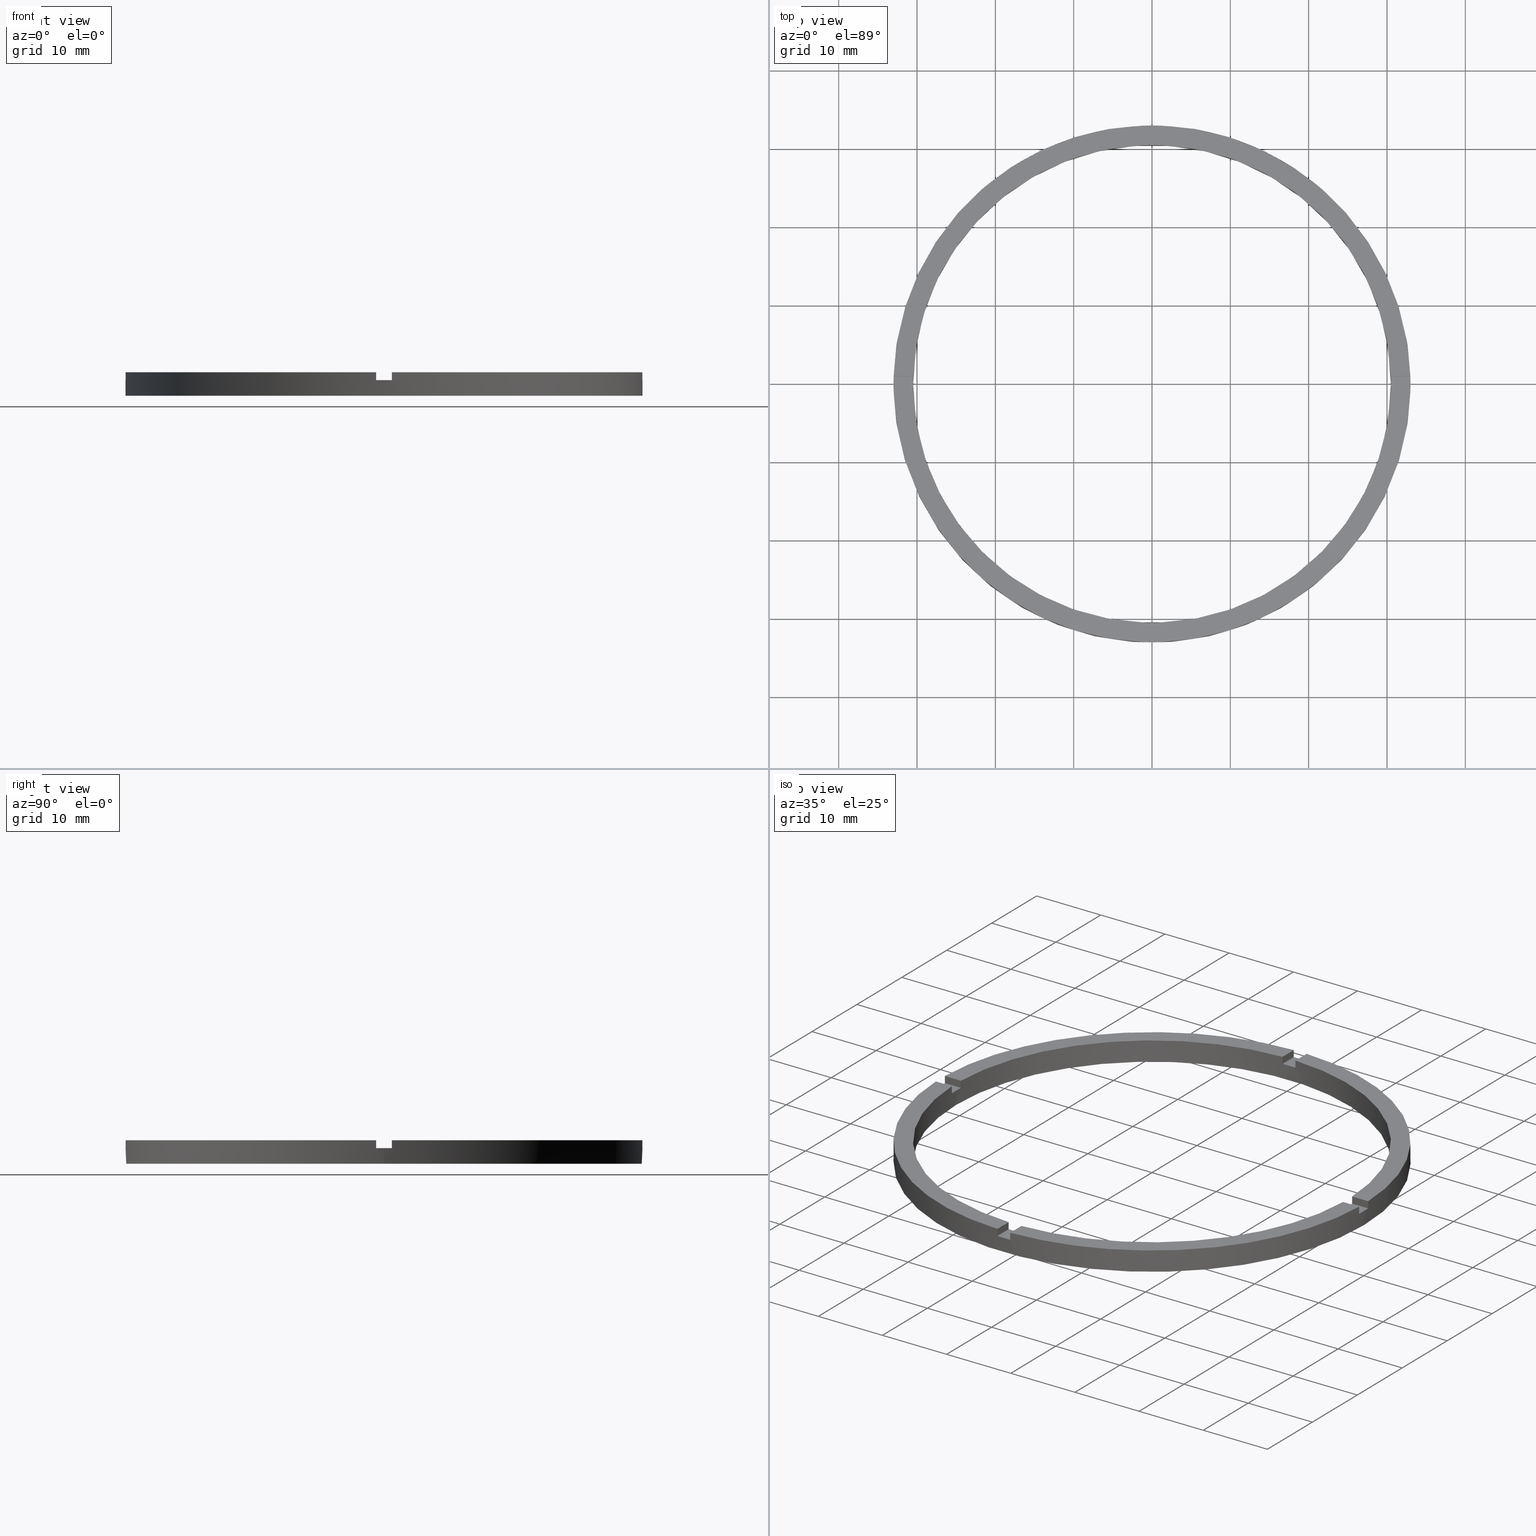
[diagram: canonical four-view strip — front | top / right | iso, engineering-drawing reading convention]
A machine part, canonical four-view strip (front | top / right | iso — engineering-drawing reading convention). The complete STEP part file that produces these views, byte-faithful:
ISO-10303-21;
HEADER;
FILE_DESCRIPTION (( 'STEP AP203' ),
    '1' );
FILE_NAME ('514137.step',
    '2024-12-26T02:41:05',
    ( 'MSI' ),
    ( '' ),
    'SwSTEP 2.0',
    'SolidWorks 2020',
    '' );
FILE_SCHEMA (( 'CONFIG_CONTROL_DESIGN' ));
ENDSEC;

DATA;
#1 = DIRECTION ( 'NONE',  ( 1.301042606982605074E-16, -1.000000000000000000, 0.000000000000000000 ) ) ;
#2 = AXIS2_PLACEMENT_3D ( 'NONE', #658, #128, #507 ) ;
#3 = CARTESIAN_POINT ( 'NONE',  ( 0.9999999999998377964, -23.00000000000018119, 3.000000000000000000 ) ) ;
#4 = DIRECTION ( 'NONE',  ( 0.000000000000000000, 0.000000000000000000, 1.000000000000000000 ) ) ;
#5 = EDGE_CURVE ( 'NONE', #659, #632, #130, .T. ) ;
#6 = CARTESIAN_POINT ( 'NONE',  ( 0.000000000000000000, 0.000000000000000000, 3.000000000000000000 ) ) ;
#7 = APPLICATION_PROTOCOL_DEFINITION ( 'international standard', 'config_control_design', 1994, #109 ) ;
#8 = EDGE_CURVE ( 'NONE', #237, #100, #144, .T. ) ;
#9 = ADVANCED_FACE ( 'NONE', ( #680 ), #294, .F. ) ;
#10 = CARTESIAN_POINT ( 'NONE',  ( 0.9999999999998386846, -30.48360214935236456, 3.000000000000000000 ) ) ;
#11 = CARTESIAN_POINT ( 'NONE',  ( -1.000000000000162315, -23.00000000000018119, 2.000000000000000000 ) ) ;
#12 = ORIENTED_EDGE ( 'NONE', *, *, #735, .F. ) ;
#13 = DIRECTION ( 'NONE',  ( 1.000000000000000000, 0.000000000000000000, 0.000000000000000000 ) ) ;
#14 = ORIENTED_EDGE ( 'NONE', *, *, #743, .F. ) ;
#15 = CARTESIAN_POINT ( 'NONE',  ( 0.000000000000000000, 0.000000000000000000, 0.000000000000000000 ) ) ;
#16 = CARTESIAN_POINT ( 'NONE',  ( 0.000000000000000000, 0.000000000000000000, 2.000000000000000000 ) ) ;
#17 = CARTESIAN_POINT ( 'NONE',  ( 0.9999999999999753530, 32.98484500494129179, 2.000000000000000000 ) ) ;
#18 = DIRECTION ( 'NONE',  ( 1.301042606982605074E-16, -1.000000000000000000, 0.000000000000000000 ) ) ;
#19 = PERSON_AND_ORGANIZATION ( #245, #57 ) ;
#20 = VECTOR ( 'NONE', #579, 1000.000000000000000 ) ;
#21 = CARTESIAN_POINT ( 'NONE',  ( -1.000000000000024647, 30.48360214935236101, 2.000000000000000000 ) ) ;
#22 = VECTOR ( 'NONE', #705, 1000.000000000000000 ) ;
#23 = CARTESIAN_POINT ( 'NONE',  ( 0.9999999999999753530, 30.48360214935236101, 2.000000000000000000 ) ) ;
#24 = LINE ( 'NONE', #530, #313 ) ;
#25 = ORIENTED_EDGE ( 'NONE', *, *, #500, .T. ) ;
#26 = FACE_OUTER_BOUND ( 'NONE', #547, .T. ) ;
#27 = LOCAL_TIME ( 10, 41, 5.000000000000000000, #274 ) ;
#28 = DIRECTION ( 'NONE',  ( 1.000000000000000000, 1.301042606982605074E-16, 0.000000000000000000 ) ) ;
#29 = PERSON_AND_ORGANIZATION ( #245, #57 ) ;
#30 = DIRECTION ( 'NONE',  ( 1.000000000000000000, 0.000000000000000000, 0.000000000000000000 ) ) ;
#31 = ORIENTED_EDGE ( 'NONE', *, *, #497, .F. ) ;
#32 = LINE ( 'NONE', #316, #20 ) ;
#33 = VERTEX_POINT ( 'NONE', #570 ) ;
#34 = VECTOR ( 'NONE', #39, 1000.000000000000000 ) ;
#35 = ORIENTED_EDGE ( 'NONE', *, *, #169, .F. ) ;
#36 = CARTESIAN_POINT ( 'NONE',  ( 0.000000000000000000, 0.000000000000000000, 2.000000000000000000 ) ) ;
#37 = DIRECTION ( 'NONE',  ( 1.000000000000000000, 0.000000000000000000, 0.000000000000000000 ) ) ;
#38 = EDGE_CURVE ( 'NONE', #131, #623, #414, .T. ) ;
#39 = DIRECTION ( 'NONE',  ( -0.000000000000000000, -0.000000000000000000, -1.000000000000000000 ) ) ;
#40 = CIRCLE ( 'NONE', #687, 33.00000000000000000 ) ;
#41 = VECTOR ( 'NONE', #353, 1000.000000000000000 ) ;
#42 = EDGE_CURVE ( 'NONE', #624, #493, #669, .T. ) ;
#43 = VECTOR ( 'NONE', #483, 1000.000000000000000 ) ;
#44 = ORIENTED_EDGE ( 'NONE', *, *, #138, .T. ) ;
#45 = EDGE_LOOP ( 'NONE', ( #645, #652, #577, #306 ) ) ;
#46 = LINE ( 'NONE', #93, #282 ) ;
#47 = ORIENTED_EDGE ( 'NONE', *, *, #194, .T. ) ;
#48 = VERTEX_POINT ( 'NONE', #455 ) ;
#49 = FACE_OUTER_BOUND ( 'NONE', #196, .T. ) ;
#50 = VECTOR ( 'NONE', #430, 1000.000000000000000 ) ;
#51 = ORIENTED_EDGE ( 'NONE', *, *, #180, .T. ) ;
#52 = AXIS2_PLACEMENT_3D ( 'NONE', #756, #466, #13 ) ;
#53 = ORIENTED_EDGE ( 'NONE', *, *, #443, .F. ) ;
#54 = CIRCLE ( 'NONE', #240, 33.00000000000000000 ) ;
#55 = LINE ( 'NONE', #604, #82 ) ;
#56 = AXIS2_PLACEMENT_3D ( 'NONE', #214, #513, #416 ) ;
#57 = ORGANIZATION ( 'δָ��', 'δָ��', '' ) ;
#58 = PRODUCT_DEFINITION ( 'δ֪', '', #783, #308 ) ;
#59 = EDGE_CURVE ( 'NONE', #201, #458, #676, .T. ) ;
#60 = LINE ( 'NONE', #222, #50 ) ;
#61 = EDGE_CURVE ( 'NONE', #557, #307, #145, .T. ) ;
#62 = PERSON_AND_ORGANIZATION ( #245, #57 ) ;
#63 = VECTOR ( 'NONE', #197, 1000.000000000000000 ) ;
#64 = PLANE ( 'NONE',  #650 ) ;
#65 = CALENDAR_DATE ( 2024, 26, 12 ) ;
#66 = LINE ( 'NONE', #693, #337 ) ;
#67 = CIRCLE ( 'NONE', #767, 33.00000000000000000 ) ;
#68 = LINE ( 'NONE', #235, #569 ) ;
#69 = FACE_OUTER_BOUND ( 'NONE', #189, .T. ) ;
#70 = DIRECTION ( 'NONE',  ( -0.000000000000000000, 0.000000000000000000, 1.000000000000000000 ) ) ;
#71 = CIRCLE ( 'NONE', #467, 33.00000000000000000 ) ;
#72 = CALENDAR_DATE ( 2024, 26, 12 ) ;
#73 = LINE ( 'NONE', #486, #88 ) ;
#74 = LINE ( 'NONE', #202, #63 ) ;
#75 = EDGE_CURVE ( 'NONE', #639, #98, #412, .T. ) ;
#76 = LINE ( 'NONE', #211, #603 ) ;
#77 = ORIENTED_EDGE ( 'NONE', *, *, #498, .F. ) ;
#78 = CIRCLE ( 'NONE', #742, 30.50000000000000000 ) ;
#79 = VECTOR ( 'NONE', #707, 1000.000000000000000 ) ;
#80 = PLANE ( 'NONE',  #523 ) ;
#81 = COORDINATED_UNIVERSAL_TIME_OFFSET ( 8, 0, .AHEAD. ) ;
#82 = VECTOR ( 'NONE', #777, 1000.000000000000000 ) ;
#83 = ORIENTED_EDGE ( 'NONE', *, *, #121, .T. ) ;
#84 = DATE_AND_TIME ( #65, #339 ) ;
#85 = DIRECTION ( 'NONE',  ( -1.000000000000000000, -1.951563910473908228E-16, 0.000000000000000000 ) ) ;
#86 = PERSON_AND_ORGANIZATION ( #245, #57 ) ;
#87 = FACE_OUTER_BOUND ( 'NONE', #45, .T. ) ;
#88 = VECTOR ( 'NONE', #374, 1000.000000000000000 ) ;
#89 = ORIENTED_EDGE ( 'NONE', *, *, #292, .F. ) ;
#90 = CIRCLE ( 'NONE', #352, 33.00000000000000000 ) ;
#91 = PERSON_AND_ORGANIZATION ( #245, #57 ) ;
#92 = ORIENTED_EDGE ( 'NONE', *, *, #217, .F. ) ;
#93 = CARTESIAN_POINT ( 'NONE',  ( -1.000000000000161426, -30.48360214935235390, 3.000000000000000000 ) ) ;
#94 = LINE ( 'NONE', #759, #581 ) ;
#95 = EDGE_LOOP ( 'NONE', ( #35, #341, #627, #400 ) ) ;
#96 = ORIENTED_EDGE ( 'NONE', *, *, #5, .T. ) ;
#97 = EDGE_CURVE ( 'NONE', #237, #755, #143, .T. ) ;
#98 = VERTEX_POINT ( 'NONE', #424 ) ;
#99 = EDGE_LOOP ( 'NONE', ( #402, #344, #643, #174 ) ) ;
#100 = VERTEX_POINT ( 'NONE', #505 ) ;
#101 = ORIENTED_EDGE ( 'NONE', *, *, #640, .T. ) ;
#102 = CARTESIAN_POINT ( 'NONE',  ( 0.000000000000000000, 0.000000000000000000, 2.000000000000000000 ) ) ;
#103 = APPROVAL ( #766, 'δָ��' ) ;
#104 = CALENDAR_DATE ( 2024, 26, 12 ) ;
#105 = ORIENTED_EDGE ( 'NONE', *, *, #743, .T. ) ;
#106 = ORIENTED_EDGE ( 'NONE', *, *, #138, .F. ) ;
#107 = ADVANCED_FACE ( 'NONE', ( #149 ), #671, .F. ) ;
#108 = VERTEX_POINT ( 'NONE', #164 ) ;
#109 = APPLICATION_CONTEXT ( 'configuration controlled 3d designs of mechanical parts and assemblies' ) ;
#110 = EDGE_CURVE ( 'NONE', #564, #48, #409, .T. ) ;
#111 = EDGE_LOOP ( 'NONE', ( #101, #83, #714, #448 ) ) ;
#112 = DIRECTION ( 'NONE',  ( 1.000000000000000000, 0.000000000000000000, -0.000000000000000000 ) ) ;
#113 = EDGE_LOOP ( 'NONE', ( #484, #314, #396, #741, #373, #47, #634, #502, #575, #716, #562, #746 ) ) ;
#114 = ORIENTED_EDGE ( 'NONE', *, *, #110, .T. ) ;
#115 = VERTEX_POINT ( 'NONE', #535 ) ;
#116 = CARTESIAN_POINT ( 'NONE',  ( -1.000000000000161426, -30.48360214935235390, 2.000000000000000000 ) ) ;
#117 = VERTEX_POINT ( 'NONE', #754 ) ;
#118 = EDGE_CURVE ( 'NONE', #749, #115, #423, .T. ) ;
#119 = CARTESIAN_POINT ( 'NONE',  ( 30.50000000000000000, 3.735172737399427541E-15, 2.000000000000000000 ) ) ;
#120 = VERTEX_POINT ( 'NONE', #17 ) ;
#121 = EDGE_CURVE ( 'NONE', #564, #156, #147, .T. ) ;
#122 = ORIENTED_EDGE ( 'NONE', *, *, #162, .T. ) ;
#123 = DIRECTION ( 'NONE',  ( 1.000000000000000000, 0.000000000000000000, 0.000000000000000000 ) ) ;
#124 = ORIENTED_EDGE ( 'NONE', *, *, #735, .T. ) ;
#125 = MECHANICAL_CONTEXT ( 'NONE', #212, 'mechanical' ) ;
#126 = ORIENTED_EDGE ( 'NONE', *, *, #194, .F. ) ;
#127 = ORIENTED_EDGE ( 'NONE', *, *, #434, .T. ) ;
#128 = DIRECTION ( 'NONE',  ( 0.000000000000000000, -0.000000000000000000, 1.000000000000000000 ) ) ;
#129 = ORIENTED_EDGE ( 'NONE', *, *, #121, .F. ) ;
#130 = LINE ( 'NONE', #199, #146 ) ;
#131 = VERTEX_POINT ( 'NONE', #633 ) ;
#132 = VERTEX_POINT ( 'NONE', #21 ) ;
#133 = CARTESIAN_POINT ( 'NONE',  ( 0.9999999999998386846, -30.48360214935236456, 2.000000000000000000 ) ) ;
#134 = APPROVAL_ROLE ( '' ) ;
#135 = ORIENTED_EDGE ( 'NONE', *, *, #403, .F. ) ;
#136 = DIRECTION ( 'NONE',  ( 0.000000000000000000, 0.000000000000000000, 1.000000000000000000 ) ) ;
#137 = EDGE_LOOP ( 'NONE', ( #560, #375, #96, #298 ) ) ;
#138 = EDGE_CURVE ( 'NONE', #621, #132, #150, .T. ) ;
#139 = ORIENTED_EDGE ( 'NONE', *, *, #472, .T. ) ;
#140 = VECTOR ( 'NONE', #220, 1000.000000000000000 ) ;
#141 = DIRECTION ( 'NONE',  ( 1.000000000000000000, 0.000000000000000000, 0.000000000000000000 ) ) ;
#142 = DIRECTION ( 'NONE',  ( 1.000000000000000000, 0.000000000000000000, -0.000000000000000000 ) ) ;
#143 = CIRCLE ( 'NONE', #441, 33.00000000000000000 ) ;
#144 = LINE ( 'NONE', #453, #406 ) ;
#145 = LINE ( 'NONE', #641, #140 ) ;
#146 = VECTOR ( 'NONE', #398, 1000.000000000000000 ) ;
#147 = LINE ( 'NONE', #475, #677 ) ;
#148 = DIRECTION ( 'NONE',  ( 1.000000000000000000, 0.000000000000000000, -0.000000000000000000 ) ) ;
#149 = FACE_OUTER_BOUND ( 'NONE', #389, .T. ) ;
#150 = LINE ( 'NONE', #433, #419 ) ;
#151 = LINE ( 'NONE', #771, #421 ) ;
#152 = AXIS2_PLACEMENT_3D ( 'NONE', #251, #522, #247 ) ;
#153 = AXIS2_PLACEMENT_3D ( 'NONE', #723, #415, #469 ) ;
#154 = CARTESIAN_POINT ( 'NONE',  ( -1.000000000000160982, -32.98484500494128469, 3.000000000000000000 ) ) ;
#155 = DIRECTION ( 'NONE',  ( 1.000000000000000000, 0.000000000000000000, -0.000000000000000000 ) ) ;
#156 = VERTEX_POINT ( 'NONE', #133 ) ;
#157 = AXIS2_PLACEMENT_3D ( 'NONE', #688, #734, #778 ) ;
#158 = PLANE ( 'NONE',  #204 ) ;
#159 = CARTESIAN_POINT ( 'NONE',  ( 0.000000000000000000, 0.000000000000000000, 2.000000000000000000 ) ) ;
#160 = DIRECTION ( 'NONE',  ( 1.000000000000000000, 0.000000000000000000, 0.000000000000000000 ) ) ;
#161 = DIRECTION ( 'NONE',  ( 0.000000000000000000, 0.000000000000000000, 1.000000000000000000 ) ) ;
#162 = EDGE_CURVE ( 'NONE', #392, #639, #404, .T. ) ;
#163 = PLANE ( 'NONE',  #534 ) ;
#164 = CARTESIAN_POINT ( 'NONE',  ( 32.98484500494128469, -1.000000000000158318, 2.000000000000000000 ) ) ;
#165 = CARTESIAN_POINT ( 'NONE',  ( 32.98484500494129179, 0.9999999999998416822, 3.000000000000000000 ) ) ;
#166 = CC_DESIGN_PERSON_AND_ORGANIZATION_ASSIGNMENT ( #29, #586, ( #58 ) ) ;
#167 = EDGE_CURVE ( 'NONE', #565, #397, #678, .T. ) ;
#168 = CARTESIAN_POINT ( 'NONE',  ( -1.000000000000162315, -23.00000000000018119, 3.000000000000000000 ) ) ;
#169 = EDGE_CURVE ( 'NONE', #48, #755, #151, .T. ) ;
#170 = CARTESIAN_POINT ( 'NONE',  ( -32.98484500494129179, 0.9999999999999737987, 3.000000000000000000 ) ) ;
#171 = ORIENTED_EDGE ( 'NONE', *, *, #751, .T. ) ;
#172 = DIRECTION ( 'NONE',  ( 1.000000000000000000, 0.000000000000000000, 0.000000000000000000 ) ) ;
#173 = AXIS2_PLACEMENT_3D ( 'NONE', #509, #393, #499 ) ;
#174 = ORIENTED_EDGE ( 'NONE', *, *, #59, .T. ) ;
#175 = ORIENTED_EDGE ( 'NONE', *, *, #517, .F. ) ;
#176 = AXIS2_PLACEMENT_3D ( 'NONE', #744, #753, #112 ) ;
#177 = DIRECTION ( 'NONE',  ( 0.000000000000000000, 0.000000000000000000, 1.000000000000000000 ) ) ;
#178 = ORIENTED_EDGE ( 'NONE', *, *, #442, .F. ) ;
#179 = EDGE_CURVE ( 'NONE', #108, #380, #54, .T. ) ;
#180 = EDGE_CURVE ( 'NONE', #286, #115, #342, .T. ) ;
#181 = DIRECTION ( 'NONE',  ( 1.000000000000000000, 0.000000000000000000, 0.000000000000000000 ) ) ;
#182 = SECURITY_CLASSIFICATION_LEVEL ( 'unclassified' ) ;
#183 = ORIENTED_EDGE ( 'NONE', *, *, #751, .F. ) ;
#184 = DIRECTION ( 'NONE',  ( -6.505213034913022906E-17, 1.000000000000000000, 0.000000000000000000 ) ) ;
#185 = ORIENTED_EDGE ( 'NONE', *, *, #660, .T. ) ;
#186 = PLANE ( 'NONE',  #205 ) ;
#187 = ORIENTED_EDGE ( 'NONE', *, *, #492, .F. ) ;
#188 = ORIENTED_EDGE ( 'NONE', *, *, #442, .T. ) ;
#189 = EDGE_LOOP ( 'NONE', ( #31, #651, #25, #461, #706, #135, #719, #89, #665, #395, #615, #386 ) ) ;
#190 = ORIENTED_EDGE ( 'NONE', *, *, #179, .T. ) ;
#191 = ORIENTED_EDGE ( 'NONE', *, *, #38, .T. ) ;
#192 = ORIENTED_EDGE ( 'NONE', *, *, #738, .T. ) ;
#193 = CARTESIAN_POINT ( 'NONE',  ( 22.99999999999999645, -1.000000000000158984, 2.000000000000000000 ) ) ;
#194 = EDGE_CURVE ( 'NONE', #394, #623, #68, .T. ) ;
#195 = CARTESIAN_POINT ( 'NONE',  ( 0.000000000000000000, 0.000000000000000000, 3.000000000000000000 ) ) ;
#196 = EDGE_LOOP ( 'NONE', ( #368, #291, #381, #360, #77, #105 ) ) ;
#197 = DIRECTION ( 'NONE',  ( -0.000000000000000000, -0.000000000000000000, -1.000000000000000000 ) ) ;
#198 = CC_DESIGN_SECURITY_CLASSIFICATION ( #287, ( #783 ) ) ;
#199 = CARTESIAN_POINT ( 'NONE',  ( 0.9999999999999753530, 23.00000000000000000, 3.000000000000000000 ) ) ;
#200 = EDGE_CURVE ( 'NONE', #565, #557, #94, .T. ) ;
#201 = VERTEX_POINT ( 'NONE', #116 ) ;
#202 = CARTESIAN_POINT ( 'NONE',  ( 33.00000000000000000, 4.041334437186266200E-15, 3.000000000000000000 ) ) ;
#203 = DIRECTION ( 'NONE',  ( 1.000000000000000000, 0.000000000000000000, 0.000000000000000000 ) ) ;
#204 = AXIS2_PLACEMENT_3D ( 'NONE', #537, #244, #1 ) ;
#205 = AXIS2_PLACEMENT_3D ( 'NONE', #675, #572, #482 ) ;
#206 = AXIS2_PLACEMENT_3D ( 'NONE', #230, #28, #256 ) ;
#207 = EDGE_CURVE ( 'NONE', #657, #117, #334, .T. ) ;
#208 = DIRECTION ( 'NONE',  ( 0.000000000000000000, 0.000000000000000000, 1.000000000000000000 ) ) ;
#209 = DIRECTION ( 'NONE',  ( 1.000000000000000000, 0.000000000000000000, 0.000000000000000000 ) ) ;
#210 = EDGE_CURVE ( 'NONE', #289, #391, #55, .T. ) ;
#211 = CARTESIAN_POINT ( 'NONE',  ( 30.48360214935236456, 0.9999999999998414602, 3.000000000000000000 ) ) ;
#212 = APPLICATION_CONTEXT ( 'configuration controlled 3d designs of mechanical parts and assemblies' ) ;
#213 = CARTESIAN_POINT ( 'NONE',  ( 0.000000000000000000, 0.000000000000000000, 2.000000000000000000 ) ) ;
#214 = CARTESIAN_POINT ( 'NONE',  ( 0.000000000000000000, 0.000000000000000000, 3.000000000000000000 ) ) ;
#215 = ADVANCED_FACE ( 'NONE', ( #87 ), #625, .F. ) ;
#216 = ORIENTED_EDGE ( 'NONE', *, *, #207, .F. ) ;
#217 = EDGE_CURVE ( 'NONE', #397, #33, #326, .T. ) ;
#218 = ORIENTED_EDGE ( 'NONE', *, *, #180, .F. ) ;
#219 = PLANE ( 'NONE',  #176 ) ;
#220 = DIRECTION ( 'NONE',  ( 1.000000000000000000, 1.951563910473908228E-16, -0.000000000000000000 ) ) ;
#221 = ORIENTED_EDGE ( 'NONE', *, *, #712, .T. ) ;
#222 = CARTESIAN_POINT ( 'NONE',  ( 30.48360214935235390, -1.000000000000158540, 3.000000000000000000 ) ) ;
#223 = ORIENTED_EDGE ( 'NONE', *, *, #262, .T. ) ;
#224 = ADVANCED_FACE ( 'NONE', ( #361 ), #436, .F. ) ;
#225 = DIRECTION ( 'NONE',  ( -1.301042606982605074E-16, 1.000000000000000000, -0.000000000000000000 ) ) ;
#226 =( LENGTH_UNIT ( ) NAMED_UNIT ( * ) SI_UNIT ( .MILLI., .METRE. ) );
#227 = CARTESIAN_POINT ( 'NONE',  ( 0.9999999999999753530, 32.98484500494129179, 3.000000000000000000 ) ) ;
#228 = EDGE_CURVE ( 'NONE', #120, #632, #73, .T. ) ;
#229 = DIRECTION ( 'NONE',  ( 1.000000000000000000, 1.951563910473908228E-16, -0.000000000000000000 ) ) ;
#230 = CARTESIAN_POINT ( 'NONE',  ( 0.9999999999998377964, -23.00000000000018119, 2.000000000000000000 ) ) ;
#231 = AXIS2_PLACEMENT_3D ( 'NONE', #597, #491, #142 ) ;
#232 = PLANE ( 'NONE',  #590 ) ;
#233 = DIRECTION ( 'NONE',  ( -0.000000000000000000, -0.000000000000000000, -1.000000000000000000 ) ) ;
#234 = EDGE_CURVE ( 'NONE', #115, #749, #620, .T. ) ;
#235 = CARTESIAN_POINT ( 'NONE',  ( -32.98484500494129179, 0.9999999999999737987, 3.000000000000000000 ) ) ;
#236 = DIRECTION ( 'NONE',  ( -0.000000000000000000, 0.000000000000000000, 1.000000000000000000 ) ) ;
#237 = VERTEX_POINT ( 'NONE', #769 ) ;
#238 = EDGE_LOOP ( 'NONE', ( #727, #647, #139, #446 ) ) ;
#239 = DIRECTION ( 'NONE',  ( -0.000000000000000000, -0.000000000000000000, -1.000000000000000000 ) ) ;
#240 = AXIS2_PLACEMENT_3D ( 'NONE', #36, #774, #141 ) ;
#241 = CARTESIAN_POINT ( 'NONE',  ( -32.98484500494129179, 0.9999999999999737987, 2.000000000000000000 ) ) ;
#242 = ADVANCED_FACE ( 'NONE', ( #611 ), #186, .F. ) ;
#243 = EDGE_CURVE ( 'NONE', #392, #108, #599, .T. ) ;
#244 = DIRECTION ( 'NONE',  ( -1.000000000000000000, -1.301042606982605074E-16, 0.000000000000000000 ) ) ;
#245 = PERSON ( 'δָ��', 'δָ��', 'δָ��', ('δָ��'), ('δָ��'), ('δָ��') ) ;
#246 = DIRECTION ( 'NONE',  ( 1.000000000000000000, 0.000000000000000000, 0.000000000000000000 ) ) ;
#247 = DIRECTION ( 'NONE',  ( 1.000000000000000000, 0.000000000000000000, 0.000000000000000000 ) ) ;
#248 = APPLICATION_PROTOCOL_DEFINITION ( 'international standard', 'config_control_design', 1994, #212 ) ;
#249 = DIRECTION ( 'NONE',  ( 0.000000000000000000, 0.000000000000000000, 1.000000000000000000 ) ) ;
#250 = CARTESIAN_POINT ( 'NONE',  ( 0.000000000000000000, 0.000000000000000000, 3.000000000000000000 ) ) ;
#251 = CARTESIAN_POINT ( 'NONE',  ( 0.000000000000000000, 0.000000000000000000, 3.000000000000000000 ) ) ;
#252 = CC_DESIGN_APPROVAL ( #690, ( #58 ) ) ;
#253 = DIRECTION ( 'NONE',  ( 0.000000000000000000, 0.000000000000000000, 1.000000000000000000 ) ) ;
#254 = CARTESIAN_POINT ( 'NONE',  ( -30.48360214935236101, 0.9999999999999744649, 3.000000000000000000 ) ) ;
#255 = DIRECTION ( 'NONE',  ( 1.000000000000000000, 0.000000000000000000, 0.000000000000000000 ) ) ;
#256 = DIRECTION ( 'NONE',  ( -1.301042606982605074E-16, 1.000000000000000000, 0.000000000000000000 ) ) ;
#257 = ADVANCED_FACE ( 'NONE', ( #349 ), #594, .T. ) ;
#258 = CARTESIAN_POINT ( 'NONE',  ( -1.000000000000024647, 23.00000000000000000, 2.000000000000000000 ) ) ;
#259 = AXIS2_PLACEMENT_3D ( 'NONE', #781, #636, #630 ) ;
#260 = AXIS2_PLACEMENT_3D ( 'NONE', #193, #283, #617 ) ;
#261 = DIRECTION ( 'NONE',  ( -0.000000000000000000, -0.000000000000000000, -1.000000000000000000 ) ) ;
#262 = EDGE_CURVE ( 'NONE', #201, #156, #78, .T. ) ;
#263 = DATE_TIME_ROLE ( 'creation_date' ) ;
#264 = CARTESIAN_POINT ( 'NONE',  ( 0.000000000000000000, 0.000000000000000000, 3.000000000000000000 ) ) ;
#265 = CARTESIAN_POINT ( 'NONE',  ( 0.000000000000000000, 0.000000000000000000, 3.000000000000000000 ) ) ;
#266 = CARTESIAN_POINT ( 'NONE',  ( -30.48360214935236101, 0.9999999999999744649, 2.000000000000000000 ) ) ;
#267 = DIRECTION ( 'NONE',  ( 0.000000000000000000, 0.000000000000000000, -1.000000000000000000 ) ) ;
#268 = DIRECTION ( 'NONE',  ( 1.000000000000000000, 0.000000000000000000, 0.000000000000000000 ) ) ;
#269 = ORIENTED_EDGE ( 'NONE', *, *, #75, .T. ) ;
#270 = DIRECTION ( 'NONE',  ( 0.000000000000000000, 0.000000000000000000, 1.000000000000000000 ) ) ;
#271 = CARTESIAN_POINT ( 'NONE',  ( -30.50000000000000000, 0.000000000000000000, 2.000000000000000000 ) ) ;
#272 = DIRECTION ( 'NONE',  ( 0.000000000000000000, 0.000000000000000000, 1.000000000000000000 ) ) ;
#273 = AXIS2_PLACEMENT_3D ( 'NONE', #488, #270, #372 ) ;
#274 = COORDINATED_UNIVERSAL_TIME_OFFSET ( 8, 0, .AHEAD. ) ;
#275 = ORIENTED_EDGE ( 'NONE', *, *, #434, .F. ) ;
#276 = APPROVAL_DATE_TIME ( #538, #690 ) ;
#277 = CIRCLE ( 'NONE', #459, 33.00000000000000000 ) ;
#278 = DIRECTION ( 'NONE',  ( -0.000000000000000000, -0.000000000000000000, -1.000000000000000000 ) ) ;
#279 = CALENDAR_DATE ( 2024, 26, 12 ) ;
#280 = AXIS2_PLACEMENT_3D ( 'NONE', #195, #536, #246 ) ;
#281 = ORIENTED_EDGE ( 'NONE', *, *, #704, .T. ) ;
#282 = VECTOR ( 'NONE', #177, 1000.000000000000000 ) ;
#283 = DIRECTION ( 'NONE',  ( 6.505213034913022906E-17, -1.000000000000000000, 0.000000000000000000 ) ) ;
#284 = FACE_BOUND ( 'NONE', #662, .T. ) ;
#285 = CARTESIAN_POINT ( 'NONE',  ( 0.000000000000000000, 0.000000000000000000, 3.000000000000000000 ) ) ;
#286 = VERTEX_POINT ( 'NONE', #271 ) ;
#287 = SECURITY_CLASSIFICATION ( '', '', #182 ) ;
#288 = CIRCLE ( 'NONE', #359, 33.00000000000000000 ) ;
#289 = VERTEX_POINT ( 'NONE', #521 ) ;
#290 = VECTOR ( 'NONE', #428, 1000.000000000000000 ) ;
#291 = ORIENTED_EDGE ( 'NONE', *, *, #460, .T. ) ;
#292 = EDGE_CURVE ( 'NONE', #565, #366, #90, .T. ) ;
#293 = LINE ( 'NONE', #332, #556 ) ;
#294 = PLANE ( 'NONE',  #606 ) ;
#295 = CIRCLE ( 'NONE', #722, 33.00000000000000000 ) ;
#296 = FACE_OUTER_BOUND ( 'NONE', #473, .T. ) ;
#297 = LINE ( 'NONE', #462, #290 ) ;
#298 = ORIENTED_EDGE ( 'NONE', *, *, #228, .F. ) ;
#299 = ADVANCED_FACE ( 'NONE', ( #588 ), #64, .T. ) ;
#300 = FACE_OUTER_BOUND ( 'NONE', #747, .T. ) ;
#301 = ORIENTED_EDGE ( 'NONE', *, *, #217, .T. ) ;
#302 = AXIS2_PLACEMENT_3D ( 'NONE', #250, #552, #539 ) ;
#303 = CIRCLE ( 'NONE', #273, 33.00000000000000000 ) ;
#304 = DIRECTION ( 'NONE',  ( 0.000000000000000000, 0.000000000000000000, 1.000000000000000000 ) ) ;
#305 = ORIENTED_EDGE ( 'NONE', *, *, #704, .F. ) ;
#306 = ORIENTED_EDGE ( 'NONE', *, *, #500, .F. ) ;
#307 = VERTEX_POINT ( 'NONE', #456 ) ;
#308 = DESIGN_CONTEXT ( 'detailed design', #109, 'design' ) ;
#309 = LINE ( 'NONE', #336, #584 ) ;
#310 = LINE ( 'NONE', #686, #43 ) ;
#311 = ORIENTED_EDGE ( 'NONE', *, *, #422, .F. ) ;
#312 = ORIENTED_EDGE ( 'NONE', *, *, #61, .F. ) ;
#313 = VECTOR ( 'NONE', #435, 1000.000000000000000 ) ;
#314 = ORIENTED_EDGE ( 'NONE', *, *, #497, .T. ) ;
#315 = LINE ( 'NONE', #254, #79 ) ;
#316 = CARTESIAN_POINT ( 'NONE',  ( -1.000000000000024647, 30.48360214935236101, 3.000000000000000000 ) ) ;
#317 = DIRECTION ( 'NONE',  ( 1.301042606982605074E-16, -1.000000000000000000, 0.000000000000000000 ) ) ;
#318 = VECTOR ( 'NONE', #529, 1000.000000000000000 ) ;
#319 = CIRCLE ( 'NONE', #280, 30.50000000000000000 ) ;
#320 = LOCAL_TIME ( 10, 41, 5.000000000000000000, #589 ) ;
#321 = CIRCLE ( 'NONE', #259, 30.50000000000000000 ) ;
#322 = APPROVAL_ROLE ( '' ) ;
#323 = CIRCLE ( 'NONE', #173, 33.00000000000000000 ) ;
#324 = DIRECTION ( 'NONE',  ( 0.000000000000000000, 0.000000000000000000, 1.000000000000000000 ) ) ;
#325 = PERSON_AND_ORGANIZATION ( #245, #57 ) ;
#326 = CIRCLE ( 'NONE', #157, 30.50000000000000000 ) ;
#327 = APPROVAL_DATE_TIME ( #610, #103 ) ;
#328 = EDGE_CURVE ( 'NONE', #380, #655, #323, .T. ) ;
#329 = FACE_OUTER_BOUND ( 'NONE', #757, .T. ) ;
#330 = CYLINDRICAL_SURFACE ( 'NONE', #411, 33.00000000000000000 ) ;
#331 = CIRCLE ( 'NONE', #52, 33.00000000000000000 ) ;
#332 = CARTESIAN_POINT ( 'NONE',  ( 0.9999999999999753530, 23.00000000000000000, 2.000000000000000000 ) ) ;
#333 = DIRECTION ( 'NONE',  ( 1.000000000000000000, 0.000000000000000000, 0.000000000000000000 ) ) ;
#334 = LINE ( 'NONE', #376, #596 ) ;
#335 = APPROVAL_DATE_TIME ( #598, #525 ) ;
#336 = CARTESIAN_POINT ( 'NONE',  ( -1.000000000000024647, 32.98484500494128469, 3.000000000000000000 ) ) ;
#337 = VECTOR ( 'NONE', #740, 1000.000000000000000 ) ;
#338 = CARTESIAN_POINT ( 'NONE',  ( 0.9999999999998377964, -23.00000000000018119, 2.000000000000000000 ) ) ;
#339 = LOCAL_TIME ( 10, 41, 5.000000000000000000, #81 ) ;
#340 = AXIS2_PLACEMENT_3D ( 'NONE', #15, #715, #37 ) ;
#341 = ORIENTED_EDGE ( 'NONE', *, *, #110, .F. ) ;
#342 = LINE ( 'NONE', #531, #602 ) ;
#343 = PERSON_AND_ORGANIZATION_ROLE ( 'classification_officer' ) ;
#344 = ORIENTED_EDGE ( 'NONE', *, *, #514, .T. ) ;
#345 = PLANE ( 'NONE',  #153 ) ;
#346 = VERTEX_POINT ( 'NONE', #506 ) ;
#347 = CIRCLE ( 'NONE', #494, 30.50000000000000000 ) ;
#348 = DIRECTION ( 'NONE',  ( 1.000000000000000000, 0.000000000000000000, 0.000000000000000000 ) ) ;
#349 = FACE_OUTER_BOUND ( 'NONE', #113, .T. ) ;
#350 = FACE_OUTER_BOUND ( 'NONE', #457, .T. ) ;
#351 = LINE ( 'NONE', #338, #616 ) ;
#352 = AXIS2_PLACEMENT_3D ( 'NONE', #720, #764, #172 ) ;
#353 = DIRECTION ( 'NONE',  ( -1.301042606982605074E-16, 1.000000000000000000, -0.000000000000000000 ) ) ;
#354 = COORDINATED_UNIVERSAL_TIME_OFFSET ( 8, 0, .AHEAD. ) ;
#355 = LINE ( 'NONE', #165, #618 ) ;
#356 = DIRECTION ( 'NONE',  ( 0.000000000000000000, 0.000000000000000000, 1.000000000000000000 ) ) ;
#357 = DIRECTION ( 'NONE',  ( -0.000000000000000000, -0.000000000000000000, -1.000000000000000000 ) ) ;
#358 = FACE_OUTER_BOUND ( 'NONE', #684, .T. ) ;
#359 = AXIS2_PLACEMENT_3D ( 'NONE', #683, #378, #268 ) ;
#360 = ORIENTED_EDGE ( 'NONE', *, *, #449, .F. ) ;
#361 = FACE_OUTER_BOUND ( 'NONE', #137, .T. ) ;
#362 = ORIENTED_EDGE ( 'NONE', *, *, #612, .F. ) ;
#363 = DIRECTION ( 'NONE',  ( -1.000000000000000000, -6.505213034913022906E-17, 0.000000000000000000 ) ) ;
#364 = ORIENTED_EDGE ( 'NONE', *, *, #449, .T. ) ;
#365 = SHAPE_DEFINITION_REPRESENTATION ( #750, #382 ) ;
#366 = VERTEX_POINT ( 'NONE', #154 ) ;
#367 = LOCAL_TIME ( 10, 41, 5.000000000000000000, #595 ) ;
#368 = ORIENTED_EDGE ( 'NONE', *, *, #582, .T. ) ;
#369 = CARTESIAN_POINT ( 'NONE',  ( 0.000000000000000000, 0.000000000000000000, 2.000000000000000000 ) ) ;
#370 = PERSON_AND_ORGANIZATION ( #245, #57 ) ;
#371 = ORIENTED_EDGE ( 'NONE', *, *, #207, .T. ) ;
#372 = DIRECTION ( 'NONE',  ( 1.000000000000000000, 0.000000000000000000, 0.000000000000000000 ) ) ;
#373 = ORIENTED_EDGE ( 'NONE', *, *, #582, .F. ) ;
#374 = DIRECTION ( 'NONE',  ( 0.000000000000000000, 0.000000000000000000, 1.000000000000000000 ) ) ;
#375 = ORIENTED_EDGE ( 'NONE', *, *, #725, .T. ) ;
#376 = CARTESIAN_POINT ( 'NONE',  ( -1.000000000000024647, 23.00000000000000000, 3.000000000000000000 ) ) ;
#377 = ORIENTED_EDGE ( 'NONE', *, *, #42, .F. ) ;
#378 = DIRECTION ( 'NONE',  ( 0.000000000000000000, 0.000000000000000000, 1.000000000000000000 ) ) ;
#379 = ORIENTED_EDGE ( 'NONE', *, *, #443, .T. ) ;
#380 = VERTEX_POINT ( 'NONE', #692 ) ;
#381 = ORIENTED_EDGE ( 'NONE', *, *, #61, .T. ) ;
#382 = ADVANCED_BREP_SHAPE_REPRESENTATION ( '514137', ( #729, #340 ), #417 ) ;
#383 = CARTESIAN_POINT ( 'NONE',  ( -23.00000000000018474, -1.000000000000024203, 3.000000000000000000 ) ) ;
#384 = ORIENTED_EDGE ( 'NONE', *, *, #292, .T. ) ;
#385 = DIRECTION ( 'NONE',  ( -1.000000000000000000, 0.000000000000000000, 0.000000000000000000 ) ) ;
#386 = ORIENTED_EDGE ( 'NONE', *, *, #532, .T. ) ;
#387 = EDGE_LOOP ( 'NONE', ( #371, #185, #106, #631 ) ) ;
#388 = EDGE_LOOP ( 'NONE', ( #444, #44, #390, #450 ) ) ;
#389 = EDGE_LOOP ( 'NONE', ( #122, #124, #454, #218, #364, #305, #301, #362, #223, #129, #114, #187 ) ) ;
#390 = ORIENTED_EDGE ( 'NONE', *, *, #541, .F. ) ;
#391 = VERTEX_POINT ( 'NONE', #780 ) ;
#392 = VERTEX_POINT ( 'NONE', #697 ) ;
#393 = DIRECTION ( 'NONE',  ( 0.000000000000000000, 0.000000000000000000, 1.000000000000000000 ) ) ;
#394 = VERTEX_POINT ( 'NONE', #241 ) ;
#395 = ORIENTED_EDGE ( 'NONE', *, *, #460, .F. ) ;
#396 = ORIENTED_EDGE ( 'NONE', *, *, #761, .T. ) ;
#397 = VERTEX_POINT ( 'NONE', #649 ) ;
#398 = DIRECTION ( 'NONE',  ( 0.000000000000000000, 1.000000000000000000, 0.000000000000000000 ) ) ;
#399 = ADVANCED_FACE ( 'NONE', ( #69 ), #330, .T. ) ;
#400 = ORIENTED_EDGE ( 'NONE', *, *, #97, .T. ) ;
#401 = CC_DESIGN_PERSON_AND_ORGANIZATION_ASSIGNMENT ( #325, #343, ( #287 ) ) ;
#402 = ORIENTED_EDGE ( 'NONE', *, *, #403, .T. ) ;
#403 = EDGE_CURVE ( 'NONE', #458, #100, #67, .T. ) ;
#404 = CIRCLE ( 'NONE', #524, 30.50000000000000000 ) ;
#405 = VECTOR ( 'NONE', #317, 1000.000000000000000 ) ;
#406 = VECTOR ( 'NONE', #504, 1000.000000000000000 ) ;
#407 = ORIENTED_EDGE ( 'NONE', *, *, #422, .T. ) ;
#408 = CARTESIAN_POINT ( 'NONE',  ( -23.00000000000018474, 0.9999999999999756861, 3.000000000000000000 ) ) ;
#409 = CIRCLE ( 'NONE', #56, 30.50000000000000000 ) ;
#410 = VECTOR ( 'NONE', #85, 1000.000000000000000 ) ;
#411 = AXIS2_PLACEMENT_3D ( 'NONE', #700, #278, #385 ) ;
#412 = CIRCLE ( 'NONE', #476, 30.50000000000000000 ) ;
#413 = AXIS2_PLACEMENT_3D ( 'NONE', #731, #356, #348 ) ;
#414 = LINE ( 'NONE', #408, #410 ) ;
#415 = DIRECTION ( 'NONE',  ( 0.000000000000000000, -0.000000000000000000, 1.000000000000000000 ) ) ;
#416 = DIRECTION ( 'NONE',  ( 1.000000000000000000, 0.000000000000000000, 0.000000000000000000 ) ) ;
#417 =( GEOMETRIC_REPRESENTATION_CONTEXT ( 3 ) GLOBAL_UNCERTAINTY_ASSIGNED_CONTEXT ( ( #528 ) ) GLOBAL_UNIT_ASSIGNED_CONTEXT ( ( #226, #548, #728 ) ) REPRESENTATION_CONTEXT ( 'NONE', 'WORKASPACE' ) );
#418 = CARTESIAN_POINT ( 'NONE',  ( 0.000000000000000000, 0.000000000000000000, 2.000000000000000000 ) ) ;
#419 = VECTOR ( 'NONE', #682, 1000.000000000000000 ) ;
#420 = CARTESIAN_POINT ( 'NONE',  ( -1.000000000000160982, -32.98484500494128469, 2.000000000000000000 ) ) ;
#421 = VECTOR ( 'NONE', #732, 1000.000000000000000 ) ;
#422 = EDGE_CURVE ( 'NONE', #117, #131, #319, .T. ) ;
#423 = CIRCLE ( 'NONE', #776, 30.50000000000000000 ) ;
#424 = CARTESIAN_POINT ( 'NONE',  ( 30.48360214935236456, 0.9999999999998414602, 2.000000000000000000 ) ) ;
#425 = DIRECTION ( 'NONE',  ( 0.000000000000000000, 0.000000000000000000, 1.000000000000000000 ) ) ;
#426 = EDGE_CURVE ( 'NONE', #120, #621, #71, .T. ) ;
#427 = DIRECTION ( 'NONE',  ( -0.000000000000000000, -0.000000000000000000, -1.000000000000000000 ) ) ;
#428 = DIRECTION ( 'NONE',  ( 0.000000000000000000, 0.000000000000000000, 1.000000000000000000 ) ) ;
#429 = CARTESIAN_POINT ( 'NONE',  ( 0.000000000000000000, 0.000000000000000000, 2.000000000000000000 ) ) ;
#430 = DIRECTION ( 'NONE',  ( 0.000000000000000000, 0.000000000000000000, 1.000000000000000000 ) ) ;
#431 = DIRECTION ( 'NONE',  ( 1.000000000000000000, -0.000000000000000000, 0.000000000000000000 ) ) ;
#432 = DIRECTION ( 'NONE',  ( -1.000000000000000000, 0.000000000000000000, 0.000000000000000000 ) ) ;
#433 = CARTESIAN_POINT ( 'NONE',  ( -1.000000000000024647, 23.00000000000000000, 2.000000000000000000 ) ) ;
#434 = EDGE_CURVE ( 'NONE', #752, #131, #315, .T. ) ;
#435 = DIRECTION ( 'NONE',  ( -1.000000000000000000, -1.951563910473908228E-16, 0.000000000000000000 ) ) ;
#436 = PLANE ( 'NONE',  #721 ) ;
#437 = CC_DESIGN_PERSON_AND_ORGANIZATION_ASSIGNMENT ( #91, #480, ( #783 ) ) ;
#438 = PLANE ( 'NONE',  #685 ) ;
#439 = CARTESIAN_POINT ( 'NONE',  ( 0.9999999999999753530, 30.48360214935236101, 3.000000000000000000 ) ) ;
#440 = DIRECTION ( 'NONE',  ( -0.000000000000000000, -1.000000000000000000, -0.000000000000000000 ) ) ;
#441 = AXIS2_PLACEMENT_3D ( 'NONE', #745, #4, #209 ) ;
#442 = EDGE_CURVE ( 'NONE', #493, #98, #76, .T. ) ;
#443 = EDGE_CURVE ( 'NONE', #493, #659, #576, .T. ) ;
#444 = ORIENTED_EDGE ( 'NONE', *, *, #426, .T. ) ;
#445 = ORIENTED_EDGE ( 'NONE', *, *, #761, .F. ) ;
#446 = ORIENTED_EDGE ( 'NONE', *, *, #694, .F. ) ;
#447 = ADVANCED_FACE ( 'NONE', ( #329 ), #661, .T. ) ;
#448 = ORIENTED_EDGE ( 'NONE', *, *, #8, .F. ) ;
#449 = EDGE_CURVE ( 'NONE', #286, #307, #347, .T. ) ;
#450 = ORIENTED_EDGE ( 'NONE', *, *, #555, .T. ) ;
#451 = DIRECTION ( 'NONE',  ( 0.000000000000000000, 0.000000000000000000, 1.000000000000000000 ) ) ;
#452 = EDGE_LOOP ( 'NONE', ( #14, #127, #191, #126 ) ) ;
#453 = CARTESIAN_POINT ( 'NONE',  ( 0.9999999999998391287, -32.98484500494129179, 3.000000000000000000 ) ) ;
#454 = ORIENTED_EDGE ( 'NONE', *, *, #234, .F. ) ;
#455 = CARTESIAN_POINT ( 'NONE',  ( 30.48360214935235390, -1.000000000000158540, 3.000000000000000000 ) ) ;
#456 = CARTESIAN_POINT ( 'NONE',  ( -30.48360214935236101, -1.000000000000025535, 2.000000000000000000 ) ) ;
#457 = EDGE_LOOP ( 'NONE', ( #190, #703, #171, #648, #568, #709 ) ) ;
#458 = VERTEX_POINT ( 'NONE', #420 ) ;
#459 = AXIS2_PLACEMENT_3D ( 'NONE', #16, #672, #160 ) ;
#460 = EDGE_CURVE ( 'NONE', #289, #557, #331, .T. ) ;
#461 = ORIENTED_EDGE ( 'NONE', *, *, #97, .F. ) ;
#462 = CARTESIAN_POINT ( 'NONE',  ( -1.000000000000160982, -32.98484500494128469, 3.000000000000000000 ) ) ;
#463 = CARTESIAN_POINT ( 'NONE',  ( 0.000000000000000000, 0.000000000000000000, 0.000000000000000000 ) ) ;
#464 = DIRECTION ( 'NONE',  ( 0.000000000000000000, -0.000000000000000000, 1.000000000000000000 ) ) ;
#465 = ORIENTED_EDGE ( 'NONE', *, *, #541, .T. ) ;
#466 = DIRECTION ( 'NONE',  ( 0.000000000000000000, 0.000000000000000000, 1.000000000000000000 ) ) ;
#467 = AXIS2_PLACEMENT_3D ( 'NONE', #418, #464, #333 ) ;
#468 = CLOSED_SHELL ( 'NONE', ( #107, #257, #447, #619, #299, #779, #674, #399, #495, #9, #242, #713, #782, #511, #762, #736, #215, #501, #656, #224, #691 ) ) ;
#469 = DIRECTION ( 'NONE',  ( 1.000000000000000000, 0.000000000000000000, -0.000000000000000000 ) ) ;
#470 = AXIS2_PLACEMENT_3D ( 'NONE', #258, #679, #208 ) ;
#471 = APPROVAL_STATUS ( 'not_yet_approved' ) ;
#472 = EDGE_CURVE ( 'NONE', #33, #366, #609, .T. ) ;
#473 = EDGE_LOOP ( 'NONE', ( #608, #445 ) ) ;
#474 = CARTESIAN_POINT ( 'NONE',  ( 32.98484500494129179, 0.9999999999998416822, 3.000000000000000000 ) ) ;
#475 = CARTESIAN_POINT ( 'NONE',  ( 0.9999999999998386846, -30.48360214935236456, 3.000000000000000000 ) ) ;
#476 = AXIS2_PLACEMENT_3D ( 'NONE', #102, #324, #711 ) ;
#477 = CARTESIAN_POINT ( 'NONE',  ( 0.000000000000000000, 0.000000000000000000, 3.000000000000000000 ) ) ;
#478 = DIRECTION ( 'NONE',  ( 1.000000000000000000, 1.951563910473908228E-16, 0.000000000000000000 ) ) ;
#479 = DIRECTION ( 'NONE',  ( -0.000000000000000000, 0.000000000000000000, 1.000000000000000000 ) ) ;
#480 = PERSON_AND_ORGANIZATION_ROLE ( 'creator' ) ;
#481 = CARTESIAN_POINT ( 'NONE',  ( 0.9999999999999753530, 30.48360214935236101, 3.000000000000000000 ) ) ;
#482 = DIRECTION ( 'NONE',  ( -1.000000000000000000, -1.951563910473908228E-16, 0.000000000000000000 ) ) ;
#483 = DIRECTION ( 'NONE',  ( -1.000000000000000000, -6.505213034913022906E-17, -0.000000000000000000 ) ) ;
#484 = ORIENTED_EDGE ( 'NONE', *, *, #328, .F. ) ;
#485 = EDGE_CURVE ( 'NONE', #657, #621, #309, .T. ) ;
#486 = CARTESIAN_POINT ( 'NONE',  ( 0.9999999999999753530, 32.98484500494129179, 3.000000000000000000 ) ) ;
#487 = PLANE ( 'NONE',  #231 ) ;
#488 = CARTESIAN_POINT ( 'NONE',  ( 0.000000000000000000, 0.000000000000000000, 3.000000000000000000 ) ) ;
#489 = ORIENTED_EDGE ( 'NONE', *, *, #5, .F. ) ;
#490 = PRODUCT_RELATED_PRODUCT_CATEGORY ( 'detail', '', ( #543 ) ) ;
#491 = DIRECTION ( 'NONE',  ( 0.000000000000000000, 0.000000000000000000, 1.000000000000000000 ) ) ;
#492 = EDGE_CURVE ( 'NONE', #392, #48, #60, .T. ) ;
#493 = VERTEX_POINT ( 'NONE', #765 ) ;
#494 = AXIS2_PLACEMENT_3D ( 'NONE', #518, #161, #255 ) ;
#495 = ADVANCED_FACE ( 'NONE', ( #358 ), #592, .F. ) ;
#496 = CC_DESIGN_APPROVAL ( #525, ( #783 ) ) ;
#497 = EDGE_CURVE ( 'NONE', #380, #346, #74, .T. ) ;
#498 = EDGE_CURVE ( 'NONE', #752, #286, #321, .T. ) ;
#499 = DIRECTION ( 'NONE',  ( 1.000000000000000000, 0.000000000000000000, 0.000000000000000000 ) ) ;
#500 = EDGE_CURVE ( 'NONE', #108, #755, #66, .T. ) ;
#501 = ADVANCED_FACE ( 'NONE', ( #350 ), #80, .T. ) ;
#502 = ORIENTED_EDGE ( 'NONE', *, *, #485, .T. ) ;
#503 = EDGE_LOOP ( 'NONE', ( #637, #92, #663, #384 ) ) ;
#504 = DIRECTION ( 'NONE',  ( -0.000000000000000000, -0.000000000000000000, -1.000000000000000000 ) ) ;
#505 = CARTESIAN_POINT ( 'NONE',  ( 0.9999999999998391287, -32.98484500494129179, 2.000000000000000000 ) ) ;
#506 = CARTESIAN_POINT ( 'NONE',  ( 33.00000000000000000, 4.041334437186266200E-15, 0.000000000000000000 ) ) ;
#507 = DIRECTION ( 'NONE',  ( 1.000000000000000000, 0.000000000000000000, 0.000000000000000000 ) ) ;
#508 = CARTESIAN_POINT ( 'NONE',  ( 22.99999999999999645, 0.9999999999998411271, 3.000000000000000000 ) ) ;
#509 = CARTESIAN_POINT ( 'NONE',  ( 0.000000000000000000, 0.000000000000000000, 2.000000000000000000 ) ) ;
#510 = PERSON_AND_ORGANIZATION_ROLE ( 'design_owner' ) ;
#511 = ADVANCED_FACE ( 'NONE', ( #614 ), #158, .F. ) ;
#512 = DIRECTION ( 'NONE',  ( 0.000000000000000000, 0.000000000000000000, 1.000000000000000000 ) ) ;
#513 = DIRECTION ( 'NONE',  ( 0.000000000000000000, 0.000000000000000000, 1.000000000000000000 ) ) ;
#514 = EDGE_CURVE ( 'NONE', #100, #156, #351, .T. ) ;
#515 = CARTESIAN_POINT ( 'NONE',  ( 32.98484500494129179, 0.9999999999998416822, 2.000000000000000000 ) ) ;
#516 = CC_DESIGN_DATE_AND_TIME_ASSIGNMENT ( #613, #664, ( #287 ) ) ;
#517 = EDGE_CURVE ( 'NONE', #624, #655, #355, .T. ) ;
#518 = CARTESIAN_POINT ( 'NONE',  ( 0.000000000000000000, 0.000000000000000000, 2.000000000000000000 ) ) ;
#519 = CARTESIAN_POINT ( 'NONE',  ( 0.000000000000000000, 0.000000000000000000, 0.000000000000000000 ) ) ;
#520 = DIRECTION ( 'NONE',  ( 0.000000000000000000, 1.000000000000000000, 0.000000000000000000 ) ) ;
#521 = CARTESIAN_POINT ( 'NONE',  ( -33.00000000000000000, 0.000000000000000000, 2.000000000000000000 ) ) ;
#522 = DIRECTION ( 'NONE',  ( 0.000000000000000000, 0.000000000000000000, 1.000000000000000000 ) ) ;
#523 = AXIS2_PLACEMENT_3D ( 'NONE', #695, #451, #155 ) ;
#524 = AXIS2_PLACEMENT_3D ( 'NONE', #585, #681, #181 ) ;
#525 = APPROVAL ( #471, 'δָ��' ) ;
#526 = DIRECTION ( 'NONE',  ( 0.000000000000000000, 0.000000000000000000, 1.000000000000000000 ) ) ;
#527 = CARTESIAN_POINT ( 'NONE',  ( 22.99999999999999645, -1.000000000000158984, 2.000000000000000000 ) ) ;
#528 = UNCERTAINTY_MEASURE_WITH_UNIT (LENGTH_MEASURE( 1.000000000000000082E-05 ), #226, 'distance_accuracy_value', 'NONE');
#529 = DIRECTION ( 'NONE',  ( 1.000000000000000000, 6.505213034913022906E-17, 0.000000000000000000 ) ) ;
#530 = CARTESIAN_POINT ( 'NONE',  ( -23.00000000000018474, 0.9999999999999756861, 2.000000000000000000 ) ) ;
#531 = CARTESIAN_POINT ( 'NONE',  ( -30.50000000000000000, 0.000000000000000000, 3.000000000000000000 ) ) ;
#532 = EDGE_CURVE ( 'NONE', #391, #346, #40, .T. ) ;
#533 = ORIENTED_EDGE ( 'NONE', *, *, #498, .T. ) ;
#534 = AXIS2_PLACEMENT_3D ( 'NONE', #213, #253, #591 ) ;
#535 = CARTESIAN_POINT ( 'NONE',  ( -30.50000000000000000, 0.000000000000000000, 0.000000000000000000 ) ) ;
#536 = DIRECTION ( 'NONE',  ( 0.000000000000000000, 0.000000000000000000, 1.000000000000000000 ) ) ;
#537 = CARTESIAN_POINT ( 'NONE',  ( -1.000000000000162315, -23.00000000000018119, 2.000000000000000000 ) ) ;
#538 = DATE_AND_TIME ( #279, #27 ) ;
#539 = DIRECTION ( 'NONE',  ( -1.000000000000000000, 0.000000000000000000, 0.000000000000000000 ) ) ;
#540 = LINE ( 'NONE', #439, #559 ) ;
#541 = EDGE_CURVE ( 'NONE', #646, #132, #563, .T. ) ;
#542 = LINE ( 'NONE', #772, #34 ) ;
#543 = PRODUCT ( '514137', '514137', '', ( #125 ) ) ;
#544 = APPROVAL_PERSON_ORGANIZATION ( #19, #690, #134 ) ;
#545 = CARTESIAN_POINT ( 'NONE',  ( -30.48360214935236101, -1.000000000000025535, 3.000000000000000000 ) ) ;
#546 = FACE_OUTER_BOUND ( 'NONE', #387, .T. ) ;
#547 = EDGE_LOOP ( 'NONE', ( #622, #188, #183, #175 ) ) ;
#548 =( NAMED_UNIT ( * ) PLANE_ANGLE_UNIT ( ) SI_UNIT ( $, .RADIAN. ) );
#549 = FACE_OUTER_BOUND ( 'NONE', #388, .T. ) ;
#550 = FACE_OUTER_BOUND ( 'NONE', #503, .T. ) ;
#551 = DIRECTION ( 'NONE',  ( 1.000000000000000000, 0.000000000000000000, 0.000000000000000000 ) ) ;
#552 = DIRECTION ( 'NONE',  ( -0.000000000000000000, -0.000000000000000000, -1.000000000000000000 ) ) ;
#553 = LINE ( 'NONE', #545, #22 ) ;
#554 = FACE_OUTER_BOUND ( 'NONE', #99, .T. ) ;
#555 = EDGE_CURVE ( 'NONE', #646, #120, #293, .T. ) ;
#556 = VECTOR ( 'NONE', #520, 1000.000000000000000 ) ;
#557 = VERTEX_POINT ( 'NONE', #768 ) ;
#558 = DIRECTION ( 'NONE',  ( -0.000000000000000000, -0.000000000000000000, -1.000000000000000000 ) ) ;
#559 = VECTOR ( 'NONE', #136, 1000.000000000000000 ) ;
#560 = ORIENTED_EDGE ( 'NONE', *, *, #555, .F. ) ;
#561 = FACE_OUTER_BOUND ( 'NONE', #111, .T. ) ;
#562 = ORIENTED_EDGE ( 'NONE', *, *, #738, .F. ) ;
#563 = CIRCLE ( 'NONE', #2, 30.50000000000000000 ) ;
#564 = VERTEX_POINT ( 'NONE', #10 ) ;
#565 = VERTEX_POINT ( 'NONE', #666 ) ;
#566 = LINE ( 'NONE', #3, #41 ) ;
#567 = PLANE ( 'NONE',  #770 ) ;
#568 = ORIENTED_EDGE ( 'NONE', *, *, #162, .F. ) ;
#569 = VECTOR ( 'NONE', #272, 1000.000000000000000 ) ;
#570 = CARTESIAN_POINT ( 'NONE',  ( -1.000000000000161426, -30.48360214935235390, 3.000000000000000000 ) ) ;
#571 = EDGE_LOOP ( 'NONE', ( #628, #281, #312, #644 ) ) ;
#572 = DIRECTION ( 'NONE',  ( -1.951563910473908228E-16, 1.000000000000000000, 0.000000000000000000 ) ) ;
#573 = DIRECTION ( 'NONE',  ( -0.000000000000000000, -0.000000000000000000, -1.000000000000000000 ) ) ;
#574 = ORIENTED_EDGE ( 'NONE', *, *, #234, .T. ) ;
#575 = ORIENTED_EDGE ( 'NONE', *, *, #426, .F. ) ;
#576 = CIRCLE ( 'NONE', #152, 30.50000000000000000 ) ;
#577 = ORIENTED_EDGE ( 'NONE', *, *, #169, .T. ) ;
#578 = VECTOR ( 'NONE', #18, 1000.000000000000000 ) ;
#579 = DIRECTION ( 'NONE',  ( -0.000000000000000000, -0.000000000000000000, -1.000000000000000000 ) ) ;
#580 = DIRECTION ( 'NONE',  ( -1.000000000000000000, 0.000000000000000000, 0.000000000000000000 ) ) ;
#581 = VECTOR ( 'NONE', #239, 1000.000000000000000 ) ;
#582 = EDGE_CURVE ( 'NONE', #394, #289, #277, .T. ) ;
#583 = AXIS2_PLACEMENT_3D ( 'NONE', #6, #708, #701 ) ;
#584 = VECTOR ( 'NONE', #573, 1000.000000000000000 ) ;
#585 = CARTESIAN_POINT ( 'NONE',  ( 0.000000000000000000, 0.000000000000000000, 2.000000000000000000 ) ) ;
#586 = PERSON_AND_ORGANIZATION_ROLE ( 'creator' ) ;
#587 = CALENDAR_DATE ( 2024, 26, 12 ) ;
#588 = FACE_OUTER_BOUND ( 'NONE', #95, .T. ) ;
#589 = COORDINATED_UNIVERSAL_TIME_OFFSET ( 8, 0, .AHEAD. ) ;
#590 = AXIS2_PLACEMENT_3D ( 'NONE', #730, #184, #363 ) ;
#591 = DIRECTION ( 'NONE',  ( 1.000000000000000000, 0.000000000000000000, -0.000000000000000000 ) ) ;
#592 = CYLINDRICAL_SURFACE ( 'NONE', #717, 30.50000000000000000 ) ;
#593 = PERSON_AND_ORGANIZATION ( #245, #57 ) ;
#594 = CYLINDRICAL_SURFACE ( 'NONE', #689, 33.00000000000000000 ) ;
#595 = COORDINATED_UNIVERSAL_TIME_OFFSET ( 8, 0, .AHEAD. ) ;
#596 = VECTOR ( 'NONE', #440, 1000.000000000000000 ) ;
#597 = CARTESIAN_POINT ( 'NONE',  ( 0.000000000000000000, 0.000000000000000000, 3.000000000000000000 ) ) ;
#598 = DATE_AND_TIME ( #72, #367 ) ;
#599 = LINE ( 'NONE', #527, #318 ) ;
#600 = CARTESIAN_POINT ( 'NONE',  ( 30.50000000000000000, 3.735172737399427541E-15, 0.000000000000000000 ) ) ;
#601 = ORIENTED_EDGE ( 'NONE', *, *, #725, .F. ) ;
#602 = VECTOR ( 'NONE', #261, 1000.000000000000000 ) ;
#603 = VECTOR ( 'NONE', #668, 1000.000000000000000 ) ;
#604 = CARTESIAN_POINT ( 'NONE',  ( -33.00000000000000000, 0.000000000000000000, 3.000000000000000000 ) ) ;
#605 = PLANE ( 'NONE',  #206 ) ;
#606 = AXIS2_PLACEMENT_3D ( 'NONE', #739, #724, #478 ) ;
#607 = LOCAL_TIME ( 10, 41, 5.000000000000000000, #354 ) ;
#608 = ORIENTED_EDGE ( 'NONE', *, *, #532, .F. ) ;
#609 = LINE ( 'NONE', #168, #578 ) ;
#610 = DATE_AND_TIME ( #587, #320 ) ;
#611 = FACE_OUTER_BOUND ( 'NONE', #452, .T. ) ;
#612 = EDGE_CURVE ( 'NONE', #201, #33, #46, .T. ) ;
#613 = DATE_AND_TIME ( #104, #607 ) ;
#614 = FACE_OUTER_BOUND ( 'NONE', #238, .T. ) ;
#615 = ORIENTED_EDGE ( 'NONE', *, *, #210, .T. ) ;
#616 = VECTOR ( 'NONE', #225, 1000.000000000000000 ) ;
#617 = DIRECTION ( 'NONE',  ( 1.000000000000000000, 6.505213034913022906E-17, 0.000000000000000000 ) ) ;
#618 = VECTOR ( 'NONE', #427, 1000.000000000000000 ) ;
#619 = ADVANCED_FACE ( 'NONE', ( #300 ), #567, .T. ) ;
#620 = CIRCLE ( 'NONE', #413, 30.50000000000000000 ) ;
#621 = VERTEX_POINT ( 'NONE', #718 ) ;
#622 = ORIENTED_EDGE ( 'NONE', *, *, #42, .T. ) ;
#623 = VERTEX_POINT ( 'NONE', #170 ) ;
#624 = VERTEX_POINT ( 'NONE', #474 ) ;
#625 = PLANE ( 'NONE',  #260 ) ;
#626 = APPROVAL_PERSON_ORGANIZATION ( #370, #103, #670 ) ;
#627 = ORIENTED_EDGE ( 'NONE', *, *, #640, .F. ) ;
#628 = ORIENTED_EDGE ( 'NONE', *, *, #167, .T. ) ;
#629 = APPROVAL_PERSON_ORGANIZATION ( #593, #525, #322 ) ;
#630 = DIRECTION ( 'NONE',  ( 1.000000000000000000, 0.000000000000000000, 0.000000000000000000 ) ) ;
#631 = ORIENTED_EDGE ( 'NONE', *, *, #485, .F. ) ;
#632 = VERTEX_POINT ( 'NONE', #227 ) ;
#633 = CARTESIAN_POINT ( 'NONE',  ( -30.48360214935236101, 0.9999999999999744649, 3.000000000000000000 ) ) ;
#634 = ORIENTED_EDGE ( 'NONE', *, *, #712, .F. ) ;
#635 = ORIENTED_EDGE ( 'NONE', *, *, #118, .F. ) ;
#636 = DIRECTION ( 'NONE',  ( 0.000000000000000000, 0.000000000000000000, 1.000000000000000000 ) ) ;
#637 = ORIENTED_EDGE ( 'NONE', *, *, #472, .F. ) ;
#638 = CC_DESIGN_APPROVAL ( #103, ( #287 ) ) ;
#639 = VERTEX_POINT ( 'NONE', #119 ) ;
#640 = EDGE_CURVE ( 'NONE', #237, #564, #566, .T. ) ;
#641 = CARTESIAN_POINT ( 'NONE',  ( -23.00000000000018474, -1.000000000000024203, 2.000000000000000000 ) ) ;
#642 = ORIENTED_EDGE ( 'NONE', *, *, #118, .T. ) ;
#643 = ORIENTED_EDGE ( 'NONE', *, *, #262, .F. ) ;
#644 = ORIENTED_EDGE ( 'NONE', *, *, #200, .F. ) ;
#645 = ORIENTED_EDGE ( 'NONE', *, *, #243, .F. ) ;
#646 = VERTEX_POINT ( 'NONE', #23 ) ;
#647 = ORIENTED_EDGE ( 'NONE', *, *, #612, .T. ) ;
#648 = ORIENTED_EDGE ( 'NONE', *, *, #75, .F. ) ;
#649 = CARTESIAN_POINT ( 'NONE',  ( -30.48360214935236101, -1.000000000000025535, 3.000000000000000000 ) ) ;
#650 = AXIS2_PLACEMENT_3D ( 'NONE', #285, #304, #148 ) ;
#651 = ORIENTED_EDGE ( 'NONE', *, *, #179, .F. ) ;
#652 = ORIENTED_EDGE ( 'NONE', *, *, #492, .T. ) ;
#653 = CC_DESIGN_PERSON_AND_ORGANIZATION_ASSIGNMENT ( #86, #760, ( #783 ) ) ;
#654 = ORIENTED_EDGE ( 'NONE', *, *, #38, .F. ) ;
#655 = VERTEX_POINT ( 'NONE', #515 ) ;
#656 = ADVANCED_FACE ( 'NONE', ( #546 ), #763, .F. ) ;
#657 = VERTEX_POINT ( 'NONE', #699 ) ;
#658 = CARTESIAN_POINT ( 'NONE',  ( 0.000000000000000000, 0.000000000000000000, 2.000000000000000000 ) ) ;
#659 = VERTEX_POINT ( 'NONE', #481 ) ;
#660 = EDGE_CURVE ( 'NONE', #117, #132, #32, .T. ) ;
#661 = PLANE ( 'NONE',  #583 ) ;
#662 = EDGE_LOOP ( 'NONE', ( #574, #642 ) ) ;
#663 = ORIENTED_EDGE ( 'NONE', *, *, #167, .F. ) ;
#664 = DATE_TIME_ROLE ( 'classification_date' ) ;
#665 = ORIENTED_EDGE ( 'NONE', *, *, #200, .T. ) ;
#666 = CARTESIAN_POINT ( 'NONE',  ( -32.98484500494128469, -1.000000000000026201, 3.000000000000000000 ) ) ;
#667 = VECTOR ( 'NONE', #229, 1000.000000000000000 ) ;
#668 = DIRECTION ( 'NONE',  ( -0.000000000000000000, -0.000000000000000000, -1.000000000000000000 ) ) ;
#669 = LINE ( 'NONE', #508, #673 ) ;
#670 = APPROVAL_ROLE ( '' ) ;
#671 = CYLINDRICAL_SURFACE ( 'NONE', #302, 30.50000000000000000 ) ;
#672 = DIRECTION ( 'NONE',  ( 0.000000000000000000, 0.000000000000000000, 1.000000000000000000 ) ) ;
#673 = VECTOR ( 'NONE', #748, 1000.000000000000000 ) ;
#674 = ADVANCED_FACE ( 'NONE', ( #296, #284 ), #219, .F. ) ;
#675 = CARTESIAN_POINT ( 'NONE',  ( -23.00000000000018474, 0.9999999999999756861, 2.000000000000000000 ) ) ;
#676 = LINE ( 'NONE', #11, #405 ) ;
#677 = VECTOR ( 'NONE', #558, 1000.000000000000000 ) ;
#678 = LINE ( 'NONE', #383, #667 ) ;
#679 = DIRECTION ( 'NONE',  ( -1.000000000000000000, 0.000000000000000000, 0.000000000000000000 ) ) ;
#680 = FACE_OUTER_BOUND ( 'NONE', #571, .T. ) ;
#681 = DIRECTION ( 'NONE',  ( 0.000000000000000000, 0.000000000000000000, 1.000000000000000000 ) ) ;
#682 = DIRECTION ( 'NONE',  ( -0.000000000000000000, -1.000000000000000000, -0.000000000000000000 ) ) ;
#683 = CARTESIAN_POINT ( 'NONE',  ( 0.000000000000000000, 0.000000000000000000, 0.000000000000000000 ) ) ;
#684 = EDGE_LOOP ( 'NONE', ( #12, #269, #178, #379, #601, #465, #698, #407, #275, #533, #51, #635 ) ) ;
#685 = AXIS2_PLACEMENT_3D ( 'NONE', #369, #236, #775 ) ;
#686 = CARTESIAN_POINT ( 'NONE',  ( 22.99999999999999645, 0.9999999999998411271, 2.000000000000000000 ) ) ;
#687 = AXIS2_PLACEMENT_3D ( 'NONE', #519, #526, #30 ) ;
#688 = CARTESIAN_POINT ( 'NONE',  ( 0.000000000000000000, 0.000000000000000000, 3.000000000000000000 ) ) ;
#689 = AXIS2_PLACEMENT_3D ( 'NONE', #773, #233, #580 ) ;
#690 = APPROVAL ( #702, 'δָ��' ) ;
#691 = ADVANCED_FACE ( 'NONE', ( #549 ), #345, .T. ) ;
#692 = CARTESIAN_POINT ( 'NONE',  ( 33.00000000000000000, 4.041334437186266200E-15, 2.000000000000000000 ) ) ;
#693 = CARTESIAN_POINT ( 'NONE',  ( 32.98484500494128469, -1.000000000000158318, 3.000000000000000000 ) ) ;
#694 = EDGE_CURVE ( 'NONE', #458, #366, #297, .T. ) ;
#695 = CARTESIAN_POINT ( 'NONE',  ( 0.000000000000000000, 0.000000000000000000, 2.000000000000000000 ) ) ;
#696 = DIRECTION ( 'NONE',  ( 1.000000000000000000, 0.000000000000000000, 0.000000000000000000 ) ) ;
#697 = CARTESIAN_POINT ( 'NONE',  ( 30.48360214935235390, -1.000000000000158540, 2.000000000000000000 ) ) ;
#698 = ORIENTED_EDGE ( 'NONE', *, *, #660, .F. ) ;
#699 = CARTESIAN_POINT ( 'NONE',  ( -1.000000000000024647, 32.98484500494128469, 3.000000000000000000 ) ) ;
#700 = CARTESIAN_POINT ( 'NONE',  ( 0.000000000000000000, 0.000000000000000000, 3.000000000000000000 ) ) ;
#701 = DIRECTION ( 'NONE',  ( 1.000000000000000000, 0.000000000000000000, -0.000000000000000000 ) ) ;
#702 = APPROVAL_STATUS ( 'not_yet_approved' ) ;
#703 = ORIENTED_EDGE ( 'NONE', *, *, #328, .T. ) ;
#704 = EDGE_CURVE ( 'NONE', #397, #307, #553, .T. ) ;
#705 = DIRECTION ( 'NONE',  ( -0.000000000000000000, -0.000000000000000000, -1.000000000000000000 ) ) ;
#706 = ORIENTED_EDGE ( 'NONE', *, *, #8, .T. ) ;
#707 = DIRECTION ( 'NONE',  ( 0.000000000000000000, 0.000000000000000000, 1.000000000000000000 ) ) ;
#708 = DIRECTION ( 'NONE',  ( 0.000000000000000000, 0.000000000000000000, 1.000000000000000000 ) ) ;
#709 = ORIENTED_EDGE ( 'NONE', *, *, #243, .T. ) ;
#710 = DIRECTION ( 'NONE',  ( 1.000000000000000000, 0.000000000000000000, -0.000000000000000000 ) ) ;
#711 = DIRECTION ( 'NONE',  ( 1.000000000000000000, 0.000000000000000000, 0.000000000000000000 ) ) ;
#712 = EDGE_CURVE ( 'NONE', #657, #623, #295, .T. ) ;
#713 = ADVANCED_FACE ( 'NONE', ( #49 ), #163, .T. ) ;
#714 = ORIENTED_EDGE ( 'NONE', *, *, #514, .F. ) ;
#715 = DIRECTION ( 'NONE',  ( 0.000000000000000000, 0.000000000000000000, 1.000000000000000000 ) ) ;
#716 = ORIENTED_EDGE ( 'NONE', *, *, #228, .T. ) ;
#717 = AXIS2_PLACEMENT_3D ( 'NONE', #265, #357, #432 ) ;
#718 = CARTESIAN_POINT ( 'NONE',  ( -1.000000000000024647, 32.98484500494128469, 2.000000000000000000 ) ) ;
#719 = ORIENTED_EDGE ( 'NONE', *, *, #694, .T. ) ;
#720 = CARTESIAN_POINT ( 'NONE',  ( 0.000000000000000000, 0.000000000000000000, 3.000000000000000000 ) ) ;
#721 = AXIS2_PLACEMENT_3D ( 'NONE', #726, #431, #267 ) ;
#722 = AXIS2_PLACEMENT_3D ( 'NONE', #477, #512, #551 ) ;
#723 = CARTESIAN_POINT ( 'NONE',  ( 0.000000000000000000, 0.000000000000000000, 2.000000000000000000 ) ) ;
#724 = DIRECTION ( 'NONE',  ( 1.951563910473908228E-16, -1.000000000000000000, 0.000000000000000000 ) ) ;
#725 = EDGE_CURVE ( 'NONE', #646, #659, #540, .T. ) ;
#726 = CARTESIAN_POINT ( 'NONE',  ( 0.9999999999999753530, 23.00000000000000000, 2.000000000000000000 ) ) ;
#727 = ORIENTED_EDGE ( 'NONE', *, *, #59, .F. ) ;
#728 =( NAMED_UNIT ( * ) SI_UNIT ( $, .STERADIAN. ) SOLID_ANGLE_UNIT ( ) );
#729 = MANIFOLD_SOLID_BREP ( '�г�-����1', #468 ) ;
#730 = CARTESIAN_POINT ( 'NONE',  ( 22.99999999999999645, 0.9999999999998411271, 2.000000000000000000 ) ) ;
#731 = CARTESIAN_POINT ( 'NONE',  ( 0.000000000000000000, 0.000000000000000000, 0.000000000000000000 ) ) ;
#732 = DIRECTION ( 'NONE',  ( 1.000000000000000000, 6.505213034913022906E-17, 0.000000000000000000 ) ) ;
#733 = CARTESIAN_POINT ( 'NONE',  ( 32.98484500494128469, -1.000000000000158318, 3.000000000000000000 ) ) ;
#734 = DIRECTION ( 'NONE',  ( 0.000000000000000000, 0.000000000000000000, 1.000000000000000000 ) ) ;
#735 = EDGE_CURVE ( 'NONE', #639, #749, #542, .T. ) ;
#736 = ADVANCED_FACE ( 'NONE', ( #26 ), #232, .F. ) ;
#737 = CC_DESIGN_PERSON_AND_ORGANIZATION_ASSIGNMENT ( #62, #510, ( #543 ) ) ;
#738 = EDGE_CURVE ( 'NONE', #624, #632, #303, .T. ) ;
#739 = CARTESIAN_POINT ( 'NONE',  ( -23.00000000000018474, -1.000000000000024203, 2.000000000000000000 ) ) ;
#740 = DIRECTION ( 'NONE',  ( 0.000000000000000000, 0.000000000000000000, 1.000000000000000000 ) ) ;
#741 = ORIENTED_EDGE ( 'NONE', *, *, #210, .F. ) ;
#742 = AXIS2_PLACEMENT_3D ( 'NONE', #429, #479, #123 ) ;
#743 = EDGE_CURVE ( 'NONE', #752, #394, #24, .T. ) ;
#744 = CARTESIAN_POINT ( 'NONE',  ( 0.000000000000000000, 0.000000000000000000, 0.000000000000000000 ) ) ;
#745 = CARTESIAN_POINT ( 'NONE',  ( 0.000000000000000000, 0.000000000000000000, 3.000000000000000000 ) ) ;
#746 = ORIENTED_EDGE ( 'NONE', *, *, #517, .T. ) ;
#747 = EDGE_LOOP ( 'NONE', ( #489, #53, #377, #192 ) ) ;
#748 = DIRECTION ( 'NONE',  ( -1.000000000000000000, -6.505213034913022906E-17, -0.000000000000000000 ) ) ;
#749 = VERTEX_POINT ( 'NONE', #600 ) ;
#750 = PRODUCT_DEFINITION_SHAPE ( 'NONE', 'NONE',  #58 ) ;
#751 = EDGE_CURVE ( 'NONE', #655, #98, #310, .T. ) ;
#752 = VERTEX_POINT ( 'NONE', #266 ) ;
#753 = DIRECTION ( 'NONE',  ( 0.000000000000000000, 0.000000000000000000, 1.000000000000000000 ) ) ;
#754 = CARTESIAN_POINT ( 'NONE',  ( -1.000000000000024647, 30.48360214935236101, 3.000000000000000000 ) ) ;
#755 = VERTEX_POINT ( 'NONE', #733 ) ;
#756 = CARTESIAN_POINT ( 'NONE',  ( 0.000000000000000000, 0.000000000000000000, 2.000000000000000000 ) ) ;
#757 = EDGE_LOOP ( 'NONE', ( #216, #221, #654, #311 ) ) ;
#758 = CC_DESIGN_DATE_AND_TIME_ASSIGNMENT ( #84, #263, ( #58 ) ) ;
#759 = CARTESIAN_POINT ( 'NONE',  ( -32.98484500494128469, -1.000000000000026201, 3.000000000000000000 ) ) ;
#760 = PERSON_AND_ORGANIZATION_ROLE ( 'design_supplier' ) ;
#761 = EDGE_CURVE ( 'NONE', #346, #391, #288, .T. ) ;
#762 = ADVANCED_FACE ( 'NONE', ( #554 ), #438, .T. ) ;
#763 = PLANE ( 'NONE',  #470 ) ;
#764 = DIRECTION ( 'NONE',  ( 0.000000000000000000, 0.000000000000000000, 1.000000000000000000 ) ) ;
#765 = CARTESIAN_POINT ( 'NONE',  ( 30.48360214935236456, 0.9999999999998414602, 3.000000000000000000 ) ) ;
#766 = APPROVAL_STATUS ( 'not_yet_approved' ) ;
#767 = AXIS2_PLACEMENT_3D ( 'NONE', #159, #70, #203 ) ;
#768 = CARTESIAN_POINT ( 'NONE',  ( -32.98484500494128469, -1.000000000000026201, 2.000000000000000000 ) ) ;
#769 = CARTESIAN_POINT ( 'NONE',  ( 0.9999999999998391287, -32.98484500494129179, 3.000000000000000000 ) ) ;
#770 = AXIS2_PLACEMENT_3D ( 'NONE', #264, #249, #710 ) ;
#771 = CARTESIAN_POINT ( 'NONE',  ( 22.99999999999999645, -1.000000000000158984, 3.000000000000000000 ) ) ;
#772 = CARTESIAN_POINT ( 'NONE',  ( 30.50000000000000000, 3.735172737399427541E-15, 3.000000000000000000 ) ) ;
#773 = CARTESIAN_POINT ( 'NONE',  ( 0.000000000000000000, 0.000000000000000000, 3.000000000000000000 ) ) ;
#774 = DIRECTION ( 'NONE',  ( 0.000000000000000000, 0.000000000000000000, 1.000000000000000000 ) ) ;
#775 = DIRECTION ( 'NONE',  ( 1.000000000000000000, 0.000000000000000000, 0.000000000000000000 ) ) ;
#776 = AXIS2_PLACEMENT_3D ( 'NONE', #463, #425, #696 ) ;
#777 = DIRECTION ( 'NONE',  ( -0.000000000000000000, -0.000000000000000000, -1.000000000000000000 ) ) ;
#778 = DIRECTION ( 'NONE',  ( 1.000000000000000000, 0.000000000000000000, 0.000000000000000000 ) ) ;
#779 = ADVANCED_FACE ( 'NONE', ( #550 ), #487, .T. ) ;
#780 = CARTESIAN_POINT ( 'NONE',  ( -33.00000000000000000, 0.000000000000000000, 0.000000000000000000 ) ) ;
#781 = CARTESIAN_POINT ( 'NONE',  ( 0.000000000000000000, 0.000000000000000000, 2.000000000000000000 ) ) ;
#782 = ADVANCED_FACE ( 'NONE', ( #561 ), #605, .F. ) ;
#783 = PRODUCT_DEFINITION_FORMATION_WITH_SPECIFIED_SOURCE ( '�κ�', '', #543, .NOT_KNOWN. ) ;
ENDSEC;
END-ISO-10303-21;
